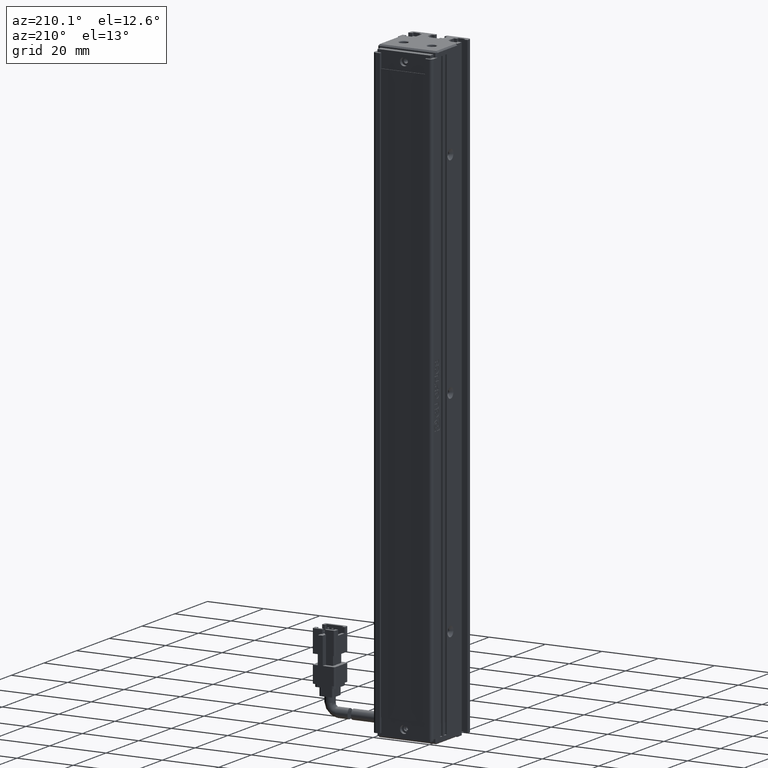
[diagram: clean part render]
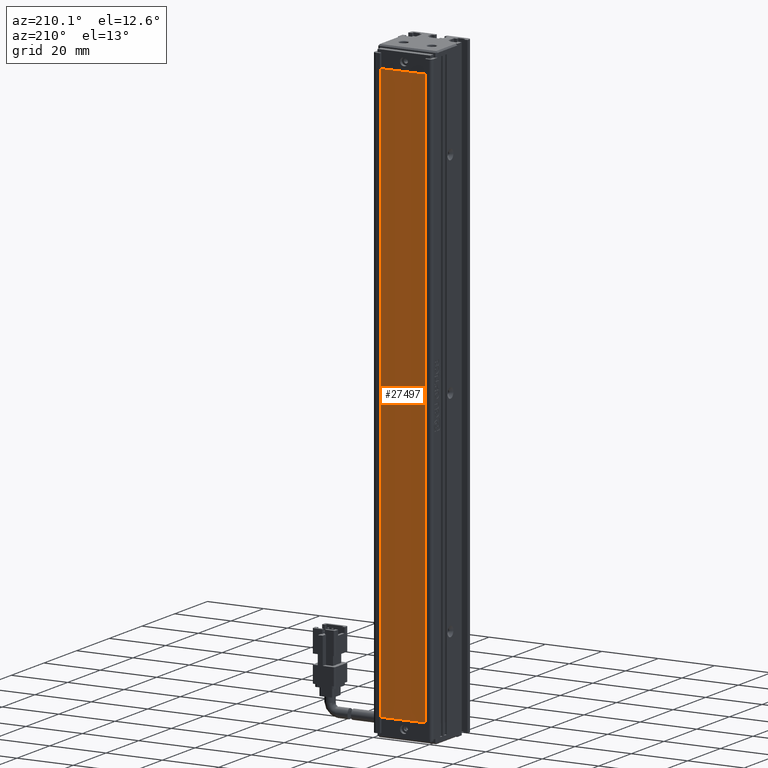
[diagram: same view with one face highlighted and labeled with its STEP entity id]
A machine part, auxiliary view. The second image highlights one B-rep face of the part: STEP entity #27497.
In plain terms, the highlighted planar face has unit normal (0, 1, -0).
Its self-contained STEP definition (entity closure, byte-faithful):
#3359 = ORIENTED_EDGE ( 'NONE', *, *, #18056, .T. ) ;
#5272 = DIRECTION ( 'NONE',  ( -1.000000000000000000, 0.0000000000000000000, 0.0000000000000000000 ) ) ;
#5980 = DIRECTION ( 'NONE',  ( 0.0000000000000000000, 0.0000000000000000000, 1.000000000000000000 ) ) ;
#7514 = EDGE_LOOP ( 'NONE', ( #3359, #12486, #45730, #10446 ) ) ;
#8843 = DIRECTION ( 'NONE',  ( 1.000000000000000000, -0.0000000000000000000, 0.0000000000000000000 ) ) ;
#10446 = ORIENTED_EDGE ( 'NONE', *, *, #23994, .T. ) ;
#12486 = ORIENTED_EDGE ( 'NONE', *, *, #25951, .T. ) ;
#13781 = FACE_OUTER_BOUND ( 'NONE', #7514, .T. ) ;
#14067 = VECTOR ( 'NONE', #42824, 1000.000000000000000 ) ;
#17652 = EDGE_CURVE ( 'NONE', #51790, #26010, #28365, .T. ) ;
#18056 = EDGE_CURVE ( 'NONE', #37876, #34654, #26418, .T. ) ;
#20201 = CARTESIAN_POINT ( 'NONE',  ( 0.0000000000000000000, 34.29073232304836700, -13.00000000000001100 ) ) ;
#20764 = DIRECTION ( 'NONE',  ( 1.360567432138672300E-016, 0.0000000000000000000, 1.000000000000000000 ) ) ;
#22446 = VECTOR ( 'NONE', #8843, 1000.000000000000000 ) ;
#23994 = EDGE_CURVE ( 'NONE', #26010, #37876, #31663, .T. ) ;
#25370 = CARTESIAN_POINT ( 'NONE',  ( 48.92537974683541800, 34.29073232304836700, -217.0000000000000000 ) ) ;
#25951 = EDGE_CURVE ( 'NONE', #34654, #51790, #30602, .T. ) ;
#26010 = VERTEX_POINT ( 'NONE', #29940 ) ;
#26418 = LINE ( 'NONE', #20201, #22446 ) ;
#27045 = PLANE ( 'NONE',  #53785 ) ;
#27064 = VECTOR ( 'NONE', #5272, 1000.000000000000000 ) ;
#27497 = ADVANCED_FACE ( 'NONE', ( #13781 ), #27045, .T. ) ;
#28365 = LINE ( 'NONE', #42917, #27064 ) ;
#29940 = CARTESIAN_POINT ( 'NONE',  ( 32.92537974683542500, 34.29073232304836700, -217.0000000000000000 ) ) ;
#30602 = LINE ( 'NONE', #54253, #14067 ) ;
#31663 = LINE ( 'NONE', #53899, #52698 ) ;
#34654 = VERTEX_POINT ( 'NONE', #35166 ) ;
#34802 = DIRECTION ( 'NONE',  ( 0.0000000000000000000, 1.000000000000000000, -0.0000000000000000000 ) ) ;
#35166 = CARTESIAN_POINT ( 'NONE',  ( 48.92537974683541800, 34.29073232304836700, -13.00000000000001100 ) ) ;
#37876 = VERTEX_POINT ( 'NONE', #38165 ) ;
#38165 = CARTESIAN_POINT ( 'NONE',  ( 32.92537974683545300, 34.29073232304836700, -13.00000000000001100 ) ) ;
#42824 = DIRECTION ( 'NONE',  ( 0.0000000000000000000, 0.0000000000000000000, -1.000000000000000000 ) ) ;
#42917 = CARTESIAN_POINT ( 'NONE',  ( 0.0000000000000000000, 34.29073232304836700, -217.0000000000000000 ) ) ;
#43275 = CARTESIAN_POINT ( 'NONE',  ( 0.0000000000000000000, 34.29073232304836700, 0.0000000000000000000 ) ) ;
#45730 = ORIENTED_EDGE ( 'NONE', *, *, #17652, .T. ) ;
#51790 = VERTEX_POINT ( 'NONE', #25370 ) ;
#52698 = VECTOR ( 'NONE', #20764, 1000.000000000000000 ) ;
#53785 = AXIS2_PLACEMENT_3D ( 'NONE', #43275, #34802, #5980 ) ;
#53899 = CARTESIAN_POINT ( 'NONE',  ( 32.92537974683545300, 34.29073232304836700, -4.479719937434256100E-015 ) ) ;
#54253 = CARTESIAN_POINT ( 'NONE',  ( 48.92537974683541800, 34.29073232304836700, 0.0000000000000000000 ) ) ;